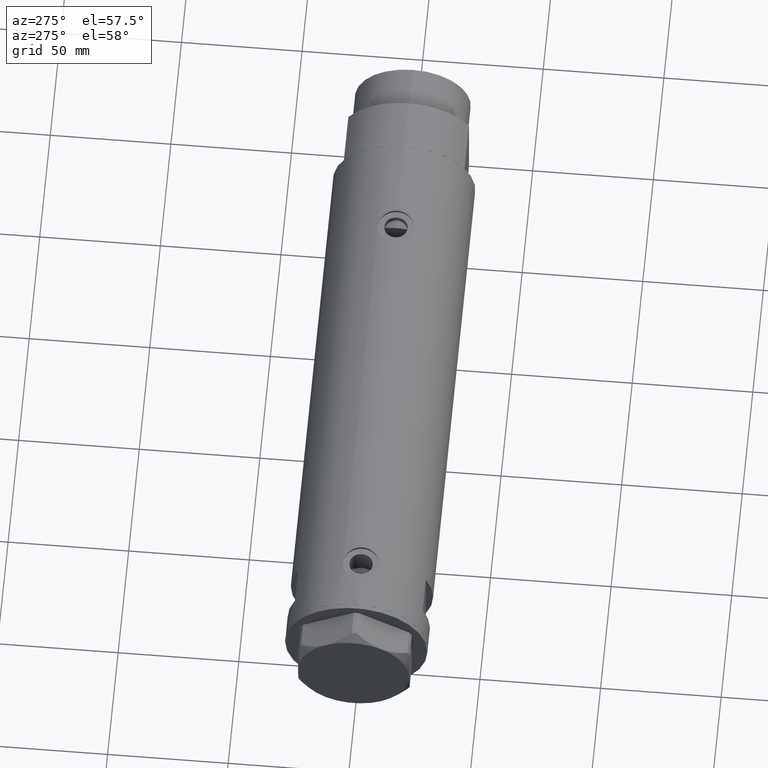
[diagram: clean part render]
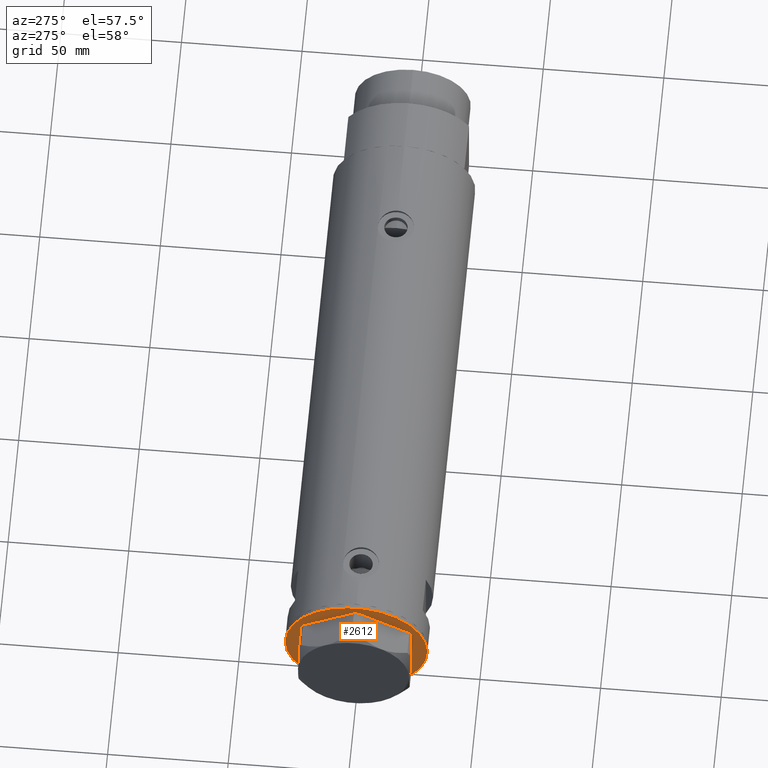
[diagram: same view with one face highlighted and labeled with its STEP entity id]
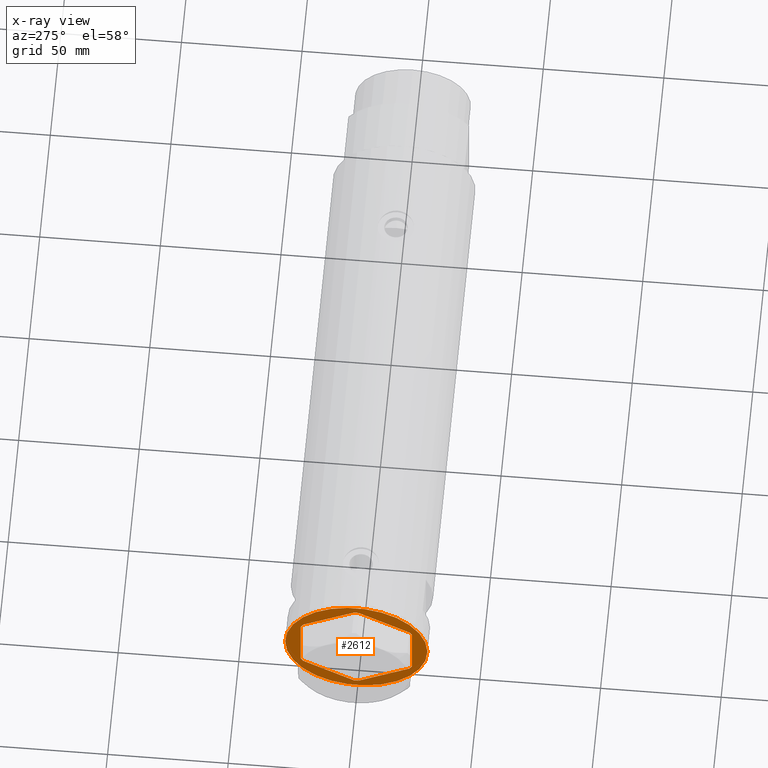
[diagram: x-ray of the same camera — body ghosted, the highlighted face saturated]
A machine part, auxiliary view. The second image highlights one B-rep face of the part: STEP entity #2612.
The next image is the same camera in x-ray: the body ghosted, the highlighted face saturated — about 0% of this face is hidden behind the body in this view.
In plain terms, the highlighted planar face has unit normal (1, 0, -0).
Its self-contained STEP definition (entity closure, byte-faithful):
#33 = CARTESIAN_POINT ( 'NONE',  ( 22.03005154776153773, -13.83905619136115561, 0.000000000000000000 ) ) ;
#38 = LINE ( 'NONE', #4065, #552 ) ;
#91 = EDGE_CURVE ( 'NONE', #827, #1740, #891, .T. ) ;
#117 = EDGE_CURVE ( 'NONE', #3035, #759, #3773, .T. ) ;
#125 = DIRECTION ( 'NONE',  ( -1.032024811306395780E-14, 1.000000000000000000, 0.000000000000000000 ) ) ;
#129 = LINE ( 'NONE', #1992, #323 ) ;
#150 = DIRECTION ( 'NONE',  ( -0.8660254037844415942, 0.4999999999999949485, 0.000000000000000000 ) ) ;
#163 = VECTOR ( 'NONE', #3695, 1000.000000000000000 ) ;
#170 = DIRECTION ( 'NONE',  ( -1.000000000000000000, -7.153879041605523216E-15, -0.000000000000000000 ) ) ;
#187 = ORIENTED_EDGE ( 'NONE', *, *, #743, .F. ) ;
#199 = CARTESIAN_POINT ( 'NONE',  ( -0.9699484522385893870, 25.99811238272273073, 0.000000000000000000 ) ) ;
#215 = EDGE_CURVE ( 'NONE', #2038, #1825, #3089, .T. ) ;
#286 = EDGE_CURVE ( 'NONE', #3156, #1825, #3898, .T. ) ;
#323 = VECTOR ( 'NONE', #150, 999.9999999999998863 ) ;
#388 = AXIS2_PLACEMENT_3D ( 'NONE', #3058, #4532, #2665 ) ;
#442 = CARTESIAN_POINT ( 'NONE',  ( -9.299367564803055752E-14, 25.99811238272273428, 0.000000000000000000 ) ) ;
#443 = DIRECTION ( 'NONE',  ( 0.5000000000000086597, -0.8660254037844337116, -0.000000000000000000 ) ) ;
#491 = LINE ( 'NONE', #3458, #4643 ) ;
#506 = CARTESIAN_POINT ( 'NONE',  ( -22.51502577388069781, 12.99905619136134050, 0.000000000000000000 ) ) ;
#517 = VERTEX_POINT ( 'NONE', #1663 ) ;
#552 = VECTOR ( 'NONE', #443, 999.9999999999998863 ) ;
#609 = CARTESIAN_POINT ( 'NONE',  ( -22.03005154776141339, 13.83905619136132792, 0.000000000000000000 ) ) ;
#616 = FACE_OUTER_BOUND ( 'NONE', #1753, .T. ) ;
#631 = EDGE_CURVE ( 'NONE', #827, #1784, #2120, .T. ) ;
#648 = VERTEX_POINT ( 'NONE', #4446 ) ;
#668 = CARTESIAN_POINT ( 'NONE',  ( -22.99999999999999645, 13.27905619136132032, 0.000000000000000000 ) ) ;
#743 = EDGE_CURVE ( 'NONE', #3035, #910, #491, .T. ) ;
#759 = VERTEX_POINT ( 'NONE', #33 ) ;
#827 = VERTEX_POINT ( 'NONE', #199 ) ;
#856 = VECTOR ( 'NONE', #2821, 1000.000000000000227 ) ;
#891 = LINE ( 'NONE', #442, #3265 ) ;
#903 = CARTESIAN_POINT ( 'NONE',  ( -29.50000000000000355, 3.612708057484692393E-15, 0.000000000000000000 ) ) ;
#910 = VERTEX_POINT ( 'NONE', #2933 ) ;
#913 = DIRECTION ( 'NONE',  ( -0.4999999999999915623, -0.8660254037844434816, -0.000000000000000000 ) ) ;
#954 = AXIS2_PLACEMENT_3D ( 'NONE', #1369, #3926, #1755 ) ;
#1032 = ORIENTED_EDGE ( 'NONE', *, *, #286, .T. ) ;
#1103 = EDGE_CURVE ( 'NONE', #1880, #1204, #2012, .T. ) ;
#1104 = VECTOR ( 'NONE', #2734, 999.9999999999998863 ) ;
#1138 = EDGE_CURVE ( 'NONE', #2038, #1784, #2352, .T. ) ;
#1154 = ORIENTED_EDGE ( 'NONE', *, *, #4624, .F. ) ;
#1204 = VERTEX_POINT ( 'NONE', #903 ) ;
#1223 = EDGE_CURVE ( 'NONE', #648, #517, #3860, .T. ) ;
#1272 = ORIENTED_EDGE ( 'NONE', *, *, #91, .T. ) ;
#1369 = CARTESIAN_POINT ( 'NONE',  ( 0.000000000000000000, 0.000000000000000000, 0.000000000000000000 ) ) ;
#1371 = DIRECTION ( 'NONE',  ( -0.8660254037844380415, -0.5000000000000008882, 0.000000000000000000 ) ) ;
#1483 = CIRCLE ( 'NONE', #954, 29.50000000000000355 ) ;
#1648 = ORIENTED_EDGE ( 'NONE', *, *, #2636, .F. ) ;
#1663 = CARTESIAN_POINT ( 'NONE',  ( -0.9699484522383873264, -25.99811238272275205, 0.000000000000000000 ) ) ;
#1703 = DIRECTION ( 'NONE',  ( 3.527173405730720141E-15, -1.000000000000000000, 0.000000000000000000 ) ) ;
#1728 = EDGE_CURVE ( 'NONE', #2876, #1740, #129, .T. ) ;
#1740 = VERTEX_POINT ( 'NONE', #3647 ) ;
#1753 = EDGE_LOOP ( 'NONE', ( #4610, #1648 ) ) ;
#1755 = DIRECTION ( 'NONE',  ( -1.000000000000000000, 0.000000000000000000, 0.000000000000000000 ) ) ;
#1784 = VERTEX_POINT ( 'NONE', #609 ) ;
#1818 = CARTESIAN_POINT ( 'NONE',  ( -22.99999999999990763, -12.15905619136148985, 0.000000000000000000 ) ) ;
#1825 = VERTEX_POINT ( 'NONE', #1818 ) ;
#1843 = ORIENTED_EDGE ( 'NONE', *, *, #215, .F. ) ;
#1845 = VECTOR ( 'NONE', #1703, 1000.000000000000000 ) ;
#1880 = VERTEX_POINT ( 'NONE', #2968 ) ;
#1917 = CARTESIAN_POINT ( 'NONE',  ( 22.51502577388080795, -12.99905619136115398, 0.000000000000000000 ) ) ;
#1973 = DIRECTION ( 'NONE',  ( 1.000000000000000000, 3.576939520802682722E-15, -0.000000000000000000 ) ) ;
#1974 = ORIENTED_EDGE ( 'NONE', *, *, #3179, .F. ) ;
#1992 = CARTESIAN_POINT ( 'NONE',  ( 22.99999999999981171, 13.27905619136164184, 0.000000000000000000 ) ) ;
#2007 = ORIENTED_EDGE ( 'NONE', *, *, #1223, .T. ) ;
#2012 = CIRCLE ( 'NONE', #388, 29.50000000000000355 ) ;
#2038 = VERTEX_POINT ( 'NONE', #2691 ) ;
#2046 = DIRECTION ( 'NONE',  ( 0.000000000000000000, 0.000000000000000000, -1.000000000000000000 ) ) ;
#2120 = LINE ( 'NONE', #3949, #3645 ) ;
#2153 = VECTOR ( 'NONE', #4688, 1000.000000000000000 ) ;
#2352 = LINE ( 'NONE', #506, #856 ) ;
#2434 = CARTESIAN_POINT ( 'NONE',  ( 0.000000000000000000, 0.000000000000000000, 0.000000000000000000 ) ) ;
#2546 = CARTESIAN_POINT ( 'NONE',  ( -22.03005154776132102, -13.83905619136147536, 0.000000000000000000 ) ) ;
#2612 = ADVANCED_FACE ( 'NONE', ( #3230, #616 ), #3585, .F. ) ;
#2636 = EDGE_CURVE ( 'NONE', #1204, #1880, #1483, .T. ) ;
#2665 = DIRECTION ( 'NONE',  ( -1.000000000000000000, 0.000000000000000000, 0.000000000000000000 ) ) ;
#2691 = CARTESIAN_POINT ( 'NONE',  ( -22.99999999999999289, 12.15905619136131754, 0.000000000000000000 ) ) ;
#2734 = DIRECTION ( 'NONE',  ( 0.8660254037844345998, 0.5000000000000069944, 0.000000000000000000 ) ) ;
#2760 = LINE ( 'NONE', #3874, #1104 ) ;
#2821 = DIRECTION ( 'NONE',  ( 0.4999999999999986677, 0.8660254037844392627, -0.000000000000000000 ) ) ;
#2876 = VERTEX_POINT ( 'NONE', #3117 ) ;
#2933 = CARTESIAN_POINT ( 'NONE',  ( 22.99999999999982236, 12.15905619136166571, 0.000000000000000000 ) ) ;
#2968 = CARTESIAN_POINT ( 'NONE',  ( 29.50000000000000355, 0.000000000000000000, 0.000000000000000000 ) ) ;
#3027 = VECTOR ( 'NONE', #170, 1000.000000000000000 ) ;
#3035 = VERTEX_POINT ( 'NONE', #3532 ) ;
#3058 = CARTESIAN_POINT ( 'NONE',  ( 0.000000000000000000, 0.000000000000000000, 0.000000000000000000 ) ) ;
#3089 = LINE ( 'NONE', #668, #1845 ) ;
#3094 = EDGE_LOOP ( 'NONE', ( #4062, #3500, #187, #4072, #1154, #2007, #1974, #1032, #1843, #4321, #3729, #1272 ) ) ;
#3117 = CARTESIAN_POINT ( 'NONE',  ( 22.03005154776124996, 13.83905619136162635, 0.000000000000000000 ) ) ;
#3156 = VERTEX_POINT ( 'NONE', #2546 ) ;
#3179 = EDGE_CURVE ( 'NONE', #3156, #517, #4417, .T. ) ;
#3225 = CARTESIAN_POINT ( 'NONE',  ( -22.51502577388055215, -12.99905619136159629, 0.000000000000000000 ) ) ;
#3230 = FACE_BOUND ( 'NONE', #3094, .T. ) ;
#3265 = VECTOR ( 'NONE', #1973, 1000.000000000000000 ) ;
#3458 = CARTESIAN_POINT ( 'NONE',  ( 23.00000000000008527, -13.27905619136115867, 0.000000000000000000 ) ) ;
#3496 = CARTESIAN_POINT ( 'NONE',  ( 1.859873512960652550E-13, -25.99811238272274139, 0.000000000000000000 ) ) ;
#3500 = ORIENTED_EDGE ( 'NONE', *, *, #3837, .T. ) ;
#3532 = CARTESIAN_POINT ( 'NONE',  ( 23.00000000000007461, -12.15905619136117721, 0.000000000000000000 ) ) ;
#3585 = PLANE ( 'NONE',  #4053 ) ;
#3645 = VECTOR ( 'NONE', #1371, 1000.000000000000227 ) ;
#3647 = CARTESIAN_POINT ( 'NONE',  ( 0.9699484522385886098, 25.99811238272273783, 0.000000000000000000 ) ) ;
#3675 = CARTESIAN_POINT ( 'NONE',  ( -22.99999999999990408, -13.27905619136147841, 0.000000000000000000 ) ) ;
#3695 = DIRECTION ( 'NONE',  ( 0.8660254037844415942, -0.4999999999999950595, 0.000000000000000000 ) ) ;
#3729 = ORIENTED_EDGE ( 'NONE', *, *, #631, .F. ) ;
#3773 = LINE ( 'NONE', #1917, #4407 ) ;
#3837 = EDGE_CURVE ( 'NONE', #2876, #910, #38, .T. ) ;
#3860 = LINE ( 'NONE', #3496, #3027 ) ;
#3874 = CARTESIAN_POINT ( 'NONE',  ( 1.854543075583504180E-13, -26.55811238272274366, 0.000000000000000000 ) ) ;
#3898 = LINE ( 'NONE', #3225, #2153 ) ;
#3926 = DIRECTION ( 'NONE',  ( 0.000000000000000000, 0.000000000000000000, -1.000000000000000000 ) ) ;
#3949 = CARTESIAN_POINT ( 'NONE',  ( 0.000000000000000000, 26.55811238272274366, 0.000000000000000000 ) ) ;
#4053 = AXIS2_PLACEMENT_3D ( 'NONE', #2434, #2046, #4692 ) ;
#4062 = ORIENTED_EDGE ( 'NONE', *, *, #1728, .F. ) ;
#4065 = CARTESIAN_POINT ( 'NONE',  ( 22.51502577388055926, 12.99905619136160162, 0.000000000000000000 ) ) ;
#4072 = ORIENTED_EDGE ( 'NONE', *, *, #117, .T. ) ;
#4321 = ORIENTED_EDGE ( 'NONE', *, *, #1138, .T. ) ;
#4407 = VECTOR ( 'NONE', #913, 1000.000000000000000 ) ;
#4417 = LINE ( 'NONE', #3675, #163 ) ;
#4446 = CARTESIAN_POINT ( 'NONE',  ( 0.9699484522387533669, -25.99811238272273428, 0.000000000000000000 ) ) ;
#4532 = DIRECTION ( 'NONE',  ( 0.000000000000000000, 0.000000000000000000, -1.000000000000000000 ) ) ;
#4610 = ORIENTED_EDGE ( 'NONE', *, *, #1103, .F. ) ;
#4624 = EDGE_CURVE ( 'NONE', #648, #759, #2760, .T. ) ;
#4643 = VECTOR ( 'NONE', #125, 1000.000000000000000 ) ;
#4688 = DIRECTION ( 'NONE',  ( -0.5000000000000086597, 0.8660254037844337116, -0.000000000000000000 ) ) ;
#4692 = DIRECTION ( 'NONE',  ( -1.000000000000000000, 0.000000000000000000, -0.000000000000000000 ) ) ;